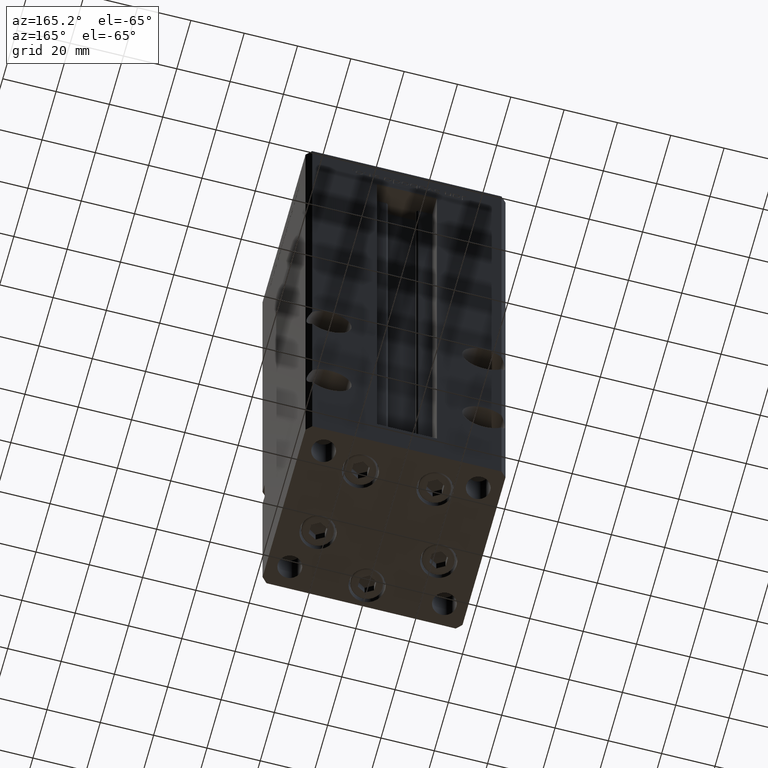
[diagram: clean part render]
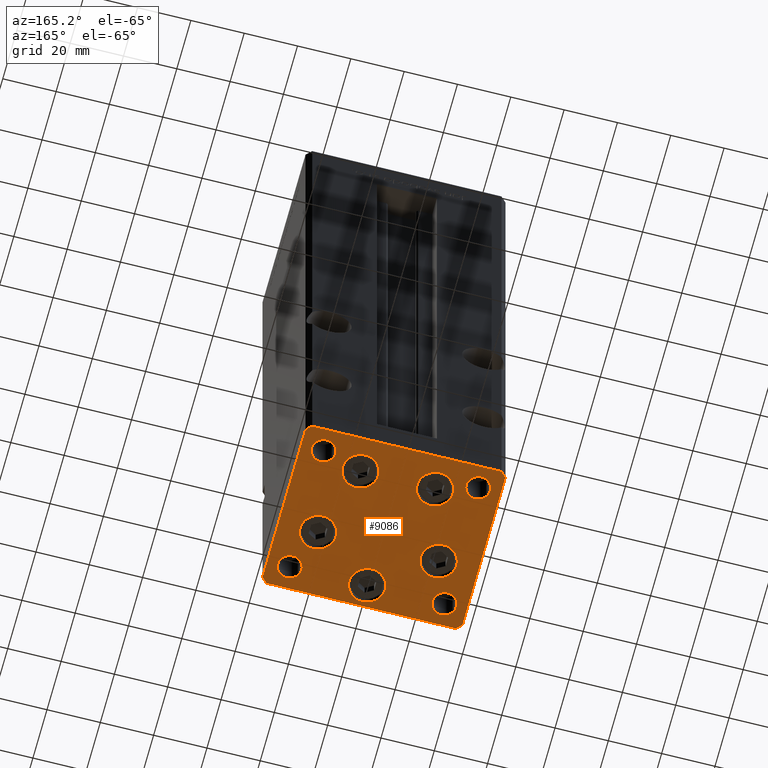
[diagram: same view with one face highlighted and labeled with its STEP entity id]
A machine part, auxiliary view. The second image highlights one B-rep face of the part: STEP entity #9086.
In plain terms, the highlighted planar face has unit normal (0, 0, -1).
Its self-contained STEP definition (entity closure, byte-faithful):
#42 = CARTESIAN_POINT ( 'NONE',  ( 7.241068579628817226, 19.50000000000000000, 0.000000000000000000 ) ) ;
#171 = CARTESIAN_POINT ( 'NONE',  ( 20.74106857963763062, 19.50000000000000000, 0.000000000000000000 ) ) ;
#424 = DIRECTION ( 'NONE',  ( -0.000000000000000000, 0.000000000000000000, 1.000000000000000000 ) ) ;
#947 = DIRECTION ( 'NONE',  ( -0.7071067811865482389, 0.7071067811865469066, 0.000000000000000000 ) ) ;
#1019 = VERTEX_POINT ( 'NONE', #6655 ) ;
#1353 = EDGE_LOOP ( 'NONE', ( #19909, #7232 ) ) ;
#1373 = CARTESIAN_POINT ( 'NONE',  ( -35.49999999999998579, -32.50000000000001421, 0.000000000000000000 ) ) ;
#1527 = CARTESIAN_POINT ( 'NONE',  ( 13.99106857963322348, 19.50000000000000000, 0.000000000000000000 ) ) ;
#1591 = DIRECTION ( 'NONE',  ( 0.000000000000000000, -0.000000000000000000, -1.000000000000000000 ) ) ;
#1741 = DIRECTION ( 'NONE',  ( 0.000000000000000000, -0.000000000000000000, -1.000000000000000000 ) ) ;
#1968 = DIRECTION ( 'NONE',  ( 0.000000000000000000, -0.000000000000000000, -1.000000000000000000 ) ) ;
#2004 = EDGE_CURVE ( 'NONE', #14595, #4115, #37417, .T. ) ;
#2223 = CARTESIAN_POINT ( 'NONE',  ( -29.00000000000001066, -23.99999999999999289, 0.000000000000000000 ) ) ;
#2390 = CARTESIAN_POINT ( 'NONE',  ( 2.939152317953647500E-15, -24.00000000000000000, 0.000000000000000000 ) ) ;
#2727 = DIRECTION ( 'NONE',  ( 1.000000000000000000, 0.000000000000000000, 0.000000000000000000 ) ) ;
#3317 = EDGE_LOOP ( 'NONE', ( #28230, #43460 ) ) ;
#3785 = EDGE_LOOP ( 'NONE', ( #23815, #47729 ) ) ;
#3932 = DIRECTION ( 'NONE',  ( 1.000000000000000000, 0.000000000000000000, 0.000000000000000000 ) ) ;
#4115 = VERTEX_POINT ( 'NONE', #40023 ) ;
#4183 = LINE ( 'NONE', #33988, #18633 ) ;
#4197 = FACE_OUTER_BOUND ( 'NONE', #42256, .T. ) ;
#4302 = DIRECTION ( 'NONE',  ( 1.000000000000000000, 0.000000000000000000, 0.000000000000000000 ) ) ;
#4529 = DIRECTION ( 'NONE',  ( 1.000000000000000000, 0.000000000000000000, 0.000000000000000000 ) ) ;
#5116 = ORIENTED_EDGE ( 'NONE', *, *, #40656, .T. ) ;
#5149 = ORIENTED_EDGE ( 'NONE', *, *, #38844, .T. ) ;
#5161 = CARTESIAN_POINT ( 'NONE',  ( -35.50000000000002842, 32.49999999999999289, 0.000000000000000000 ) ) ;
#5402 = DIRECTION ( 'NONE',  ( 1.000000000000000000, 9.773090005503140331E-17, 0.000000000000000000 ) ) ;
#5745 = CARTESIAN_POINT ( 'NONE',  ( -29.00000000000001066, 24.00000000000000711, 0.000000000000000000 ) ) ;
#5825 = CIRCLE ( 'NONE', #11840, 4.499999999999997335 ) ;
#5899 = LINE ( 'NONE', #9655, #35245 ) ;
#5915 = EDGE_LOOP ( 'NONE', ( #33072, #37031 ) ) ;
#5921 = CARTESIAN_POINT ( 'NONE',  ( 29.00000000000001066, 24.00000000000000711, 0.000000000000000000 ) ) ;
#6292 = CARTESIAN_POINT ( 'NONE',  ( -22.62741699796951877, -8.000000000000005329, 0.000000000000000000 ) ) ;
#6356 = EDGE_CURVE ( 'NONE', #49099, #11377, #7181, .T. ) ;
#6591 = CIRCLE ( 'NONE', #37472, 6.750000000004410694 ) ;
#6634 = VECTOR ( 'NONE', #44261, 1000.000000000000000 ) ;
#6655 = CARTESIAN_POINT ( 'NONE',  ( 29.37741699797392769, -8.000000000000000000, 0.000000000000000000 ) ) ;
#6708 = CARTESIAN_POINT ( 'NONE',  ( -24.50000000000001066, -23.99999999999999289, 0.000000000000000000 ) ) ;
#6791 = LINE ( 'NONE', #14845, #36937 ) ;
#7181 = CIRCLE ( 'NONE', #13150, 4.499999999999997335 ) ;
#7232 = ORIENTED_EDGE ( 'NONE', *, *, #52338, .T. ) ;
#7594 = EDGE_CURVE ( 'NONE', #19109, #27839, #26089, .T. ) ;
#8069 = EDGE_LOOP ( 'NONE', ( #9650, #5116 ) ) ;
#8263 = VECTOR ( 'NONE', #23527, 1000.000000000000000 ) ;
#8360 = DIRECTION ( 'NONE',  ( 0.000000000000000000, -0.000000000000000000, -1.000000000000000000 ) ) ;
#9086 = ADVANCED_FACE ( 'NONE', ( #23819, #41277, #48571, #32420, #44789, #24596, #41010, #20051, #4197, #16278 ), #20586, .T. ) ;
#9650 = ORIENTED_EDGE ( 'NONE', *, *, #2004, .T. ) ;
#9655 = CARTESIAN_POINT ( 'NONE',  ( -35.50000000000002842, 32.49999999999999289, 0.000000000000000000 ) ) ;
#9727 = EDGE_LOOP ( 'NONE', ( #29368, #33975 ) ) ;
#10029 = CIRCLE ( 'NONE', #14324, 6.750000000004410694 ) ;
#10341 = AXIS2_PLACEMENT_3D ( 'NONE', #35830, #23724, #10818 ) ;
#10354 = CARTESIAN_POINT ( 'NONE',  ( -24.50000000000001066, 24.00000000000000711, 0.000000000000000000 ) ) ;
#10502 = EDGE_CURVE ( 'NONE', #26970, #17338, #50047, .T. ) ;
#10818 = DIRECTION ( 'NONE',  ( 1.000000000000000000, 0.000000000000000000, 0.000000000000000000 ) ) ;
#10862 = DIRECTION ( 'NONE',  ( 0.000000000000000000, -0.000000000000000000, -1.000000000000000000 ) ) ;
#10956 = CIRCLE ( 'NONE', #15255, 6.750000000004412470 ) ;
#11167 = VERTEX_POINT ( 'NONE', #10354 ) ;
#11377 = VERTEX_POINT ( 'NONE', #17491 ) ;
#11413 = EDGE_CURVE ( 'NONE', #17338, #33655, #25821, .T. ) ;
#11738 = DIRECTION ( 'NONE',  ( -0.000000000000000000, 0.000000000000000000, 1.000000000000000000 ) ) ;
#11840 = AXIS2_PLACEMENT_3D ( 'NONE', #5921, #43267, #18265 ) ;
#11873 = CARTESIAN_POINT ( 'NONE',  ( 13.99106857963322348, 19.50000000000000000, 0.000000000000000000 ) ) ;
#12613 = CARTESIAN_POINT ( 'NONE',  ( 33.50000000000000711, 24.00000000000000711, 0.000000000000000000 ) ) ;
#12655 = DIRECTION ( 'NONE',  ( 1.000000000000000000, 0.000000000000000000, 0.000000000000000000 ) ) ;
#12865 = CIRCLE ( 'NONE', #29183, 6.750000000004408918 ) ;
#13150 = AXIS2_PLACEMENT_3D ( 'NONE', #39636, #10862, #24028 ) ;
#13603 = DIRECTION ( 'NONE',  ( 0.000000000000000000, -0.000000000000000000, -1.000000000000000000 ) ) ;
#13874 = DIRECTION ( 'NONE',  ( 1.000000000000000000, 0.000000000000000000, 0.000000000000000000 ) ) ;
#14241 = AXIS2_PLACEMENT_3D ( 'NONE', #6292, #1741, #38558 ) ;
#14324 = AXIS2_PLACEMENT_3D ( 'NONE', #47429, #22427, #34533 ) ;
#14595 = VERTEX_POINT ( 'NONE', #14835 ) ;
#14636 = DIRECTION ( 'NONE',  ( 1.000000000000000000, 0.000000000000000000, 0.000000000000000000 ) ) ;
#14708 = CARTESIAN_POINT ( 'NONE',  ( -33.50000000000001421, -23.99999999999999289, 0.000000000000000000 ) ) ;
#14835 = CARTESIAN_POINT ( 'NONE',  ( -29.37741699797393125, -8.000000000000005329, 0.000000000000000000 ) ) ;
#14845 = CARTESIAN_POINT ( 'NONE',  ( 37.50000000000001421, -30.50000000000000711, 0.000000000000000000 ) ) ;
#15047 = DIRECTION ( 'NONE',  ( -1.000000000000000000, -1.954618001100629052E-16, 0.000000000000000000 ) ) ;
#15255 = AXIS2_PLACEMENT_3D ( 'NONE', #20663, #41611, #4529 ) ;
#15488 = CIRCLE ( 'NONE', #16323, 6.750000000004407141 ) ;
#15573 = ORIENTED_EDGE ( 'NONE', *, *, #23295, .T. ) ;
#15596 = ORIENTED_EDGE ( 'NONE', *, *, #44849, .T. ) ;
#15996 = CARTESIAN_POINT ( 'NONE',  ( 37.49999999999992184, 30.50000000000001066, 0.000000000000000000 ) ) ;
#16113 = CARTESIAN_POINT ( 'NONE',  ( 35.49999999999992184, 32.50000000000000711, 0.000000000000000000 ) ) ;
#16176 = AXIS2_PLACEMENT_3D ( 'NONE', #17485, #29324, #28787 ) ;
#16189 = EDGE_LOOP ( 'NONE', ( #16643, #27377 ) ) ;
#16278 = FACE_BOUND ( 'NONE', #9727, .T. ) ;
#16323 = AXIS2_PLACEMENT_3D ( 'NONE', #1527, #34319, #13874 ) ;
#16527 = VERTEX_POINT ( 'NONE', #52586 ) ;
#16612 = VERTEX_POINT ( 'NONE', #29937 ) ;
#16643 = ORIENTED_EDGE ( 'NONE', *, *, #25708, .F. ) ;
#16875 = CARTESIAN_POINT ( 'NONE',  ( -7.241068579628817226, 19.49999999999999645, 0.000000000000000000 ) ) ;
#16980 = CIRCLE ( 'NONE', #49626, 4.500000000000000888 ) ;
#17338 = VERTEX_POINT ( 'NONE', #23352 ) ;
#17485 = CARTESIAN_POINT ( 'NONE',  ( 29.00000000000001066, 24.00000000000000711, 0.000000000000000000 ) ) ;
#17491 = CARTESIAN_POINT ( 'NONE',  ( 24.50000000000001421, -23.99999999999999289, 0.000000000000000000 ) ) ;
#17539 = VERTEX_POINT ( 'NONE', #16875 ) ;
#17629 = VECTOR ( 'NONE', #5402, 1000.000000000000000 ) ;
#17769 = EDGE_CURVE ( 'NONE', #20833, #26970, #36452, .T. ) ;
#17861 = CIRCLE ( 'NONE', #27346, 6.750000000004408918 ) ;
#18265 = DIRECTION ( 'NONE',  ( 1.000000000000000000, 0.000000000000000000, 0.000000000000000000 ) ) ;
#18569 = DIRECTION ( 'NONE',  ( 0.000000000000000000, -0.000000000000000000, -1.000000000000000000 ) ) ;
#18633 = VECTOR ( 'NONE', #947, 999.9999999999998863 ) ;
#18769 = DIRECTION ( 'NONE',  ( 1.000000000000000000, 0.000000000000000000, 0.000000000000000000 ) ) ;
#19038 = EDGE_CURVE ( 'NONE', #40472, #33330, #41732, .T. ) ;
#19109 = VERTEX_POINT ( 'NONE', #42 ) ;
#19561 = CIRCLE ( 'NONE', #24687, 4.500000000000000888 ) ;
#19909 = ORIENTED_EDGE ( 'NONE', *, *, #7594, .T. ) ;
#20029 = CARTESIAN_POINT ( 'NONE',  ( 35.50000000000000711, -32.50000000000000711, 0.000000000000000000 ) ) ;
#20051 = FACE_BOUND ( 'NONE', #3785, .T. ) ;
#20357 = AXIS2_PLACEMENT_3D ( 'NONE', #46701, #23025, #43194 ) ;
#20442 = EDGE_CURVE ( 'NONE', #16612, #24416, #6591, .T. ) ;
#20586 = PLANE ( 'NONE',  #31266 ) ;
#20663 = CARTESIAN_POINT ( 'NONE',  ( -22.62741699796951877, -8.000000000000005329, 0.000000000000000000 ) ) ;
#20694 = CARTESIAN_POINT ( 'NONE',  ( 29.00000000000001066, -23.99999999999999289, 0.000000000000000000 ) ) ;
#20799 = EDGE_CURVE ( 'NONE', #33655, #23366, #35632, .T. ) ;
#20833 = VERTEX_POINT ( 'NONE', #40463 ) ;
#21237 = AXIS2_PLACEMENT_3D ( 'NONE', #47875, #18569, #2727 ) ;
#21653 = EDGE_CURVE ( 'NONE', #52488, #44384, #4183, .T. ) ;
#21863 = DIRECTION ( 'NONE',  ( -0.000000000000000000, 0.000000000000000000, 1.000000000000000000 ) ) ;
#21987 = CARTESIAN_POINT ( 'NONE',  ( -37.49999999999998579, -30.50000000000001421, 0.000000000000000000 ) ) ;
#22116 = CIRCLE ( 'NONE', #21237, 6.750000000004410694 ) ;
#22427 = DIRECTION ( 'NONE',  ( 0.000000000000000000, -0.000000000000000000, -1.000000000000000000 ) ) ;
#23025 = DIRECTION ( 'NONE',  ( 0.000000000000000000, -0.000000000000000000, -1.000000000000000000 ) ) ;
#23128 = LINE ( 'NONE', #16113, #41928 ) ;
#23295 = EDGE_CURVE ( 'NONE', #51253, #17539, #23818, .T. ) ;
#23352 = CARTESIAN_POINT ( 'NONE',  ( -35.49999999999998579, -32.50000000000001421, 0.000000000000000000 ) ) ;
#23366 = VERTEX_POINT ( 'NONE', #28122 ) ;
#23527 = DIRECTION ( 'NONE',  ( 0.7071067811865487940, 0.7071067811865463515, 0.000000000000000000 ) ) ;
#23724 = DIRECTION ( 'NONE',  ( 0.000000000000000000, -0.000000000000000000, -1.000000000000000000 ) ) ;
#23815 = ORIENTED_EDGE ( 'NONE', *, *, #40832, .F. ) ;
#23818 = CIRCLE ( 'NONE', #20357, 6.750000000004410694 ) ;
#23819 = FACE_BOUND ( 'NONE', #36895, .T. ) ;
#24028 = DIRECTION ( 'NONE',  ( 1.000000000000000000, 0.000000000000000000, 0.000000000000000000 ) ) ;
#24416 = VERTEX_POINT ( 'NONE', #30243 ) ;
#24596 = FACE_BOUND ( 'NONE', #16189, .T. ) ;
#24687 = AXIS2_PLACEMENT_3D ( 'NONE', #48587, #11738, #44537 ) ;
#24797 = ORIENTED_EDGE ( 'NONE', *, *, #20799, .T. ) ;
#24917 = AXIS2_PLACEMENT_3D ( 'NONE', #20694, #37088, #4302 ) ;
#25230 = EDGE_CURVE ( 'NONE', #1019, #31080, #17861, .T. ) ;
#25708 = EDGE_CURVE ( 'NONE', #36040, #16527, #30761, .T. ) ;
#25821 = LINE ( 'NONE', #1373, #17629 ) ;
#26089 = CIRCLE ( 'NONE', #26936, 6.750000000004407141 ) ;
#26486 = DIRECTION ( 'NONE',  ( 0.000000000000000000, -0.000000000000000000, -1.000000000000000000 ) ) ;
#26687 = DIRECTION ( 'NONE',  ( 1.000000000000000000, 0.000000000000000000, 0.000000000000000000 ) ) ;
#26936 = AXIS2_PLACEMENT_3D ( 'NONE', #11873, #8360, #12655 ) ;
#26970 = VERTEX_POINT ( 'NONE', #21987 ) ;
#27022 = CARTESIAN_POINT ( 'NONE',  ( 35.50000000000000711, -32.50000000000000711, 0.000000000000000000 ) ) ;
#27346 = AXIS2_PLACEMENT_3D ( 'NONE', #38848, #26486, #14636 ) ;
#27377 = ORIENTED_EDGE ( 'NONE', *, *, #40300, .F. ) ;
#27826 = CARTESIAN_POINT ( 'NONE',  ( 35.49999999999992184, 32.50000000000000711, 0.000000000000000000 ) ) ;
#27839 = VERTEX_POINT ( 'NONE', #171 ) ;
#28122 = CARTESIAN_POINT ( 'NONE',  ( 37.50000000000001421, -30.50000000000000711, 0.000000000000000000 ) ) ;
#28230 = ORIENTED_EDGE ( 'NONE', *, *, #51497, .T. ) ;
#28787 = DIRECTION ( 'NONE',  ( 1.000000000000000000, 0.000000000000000000, 0.000000000000000000 ) ) ;
#29183 = AXIS2_PLACEMENT_3D ( 'NONE', #38327, #13603, #38869 ) ;
#29324 = DIRECTION ( 'NONE',  ( -0.000000000000000000, 0.000000000000000000, 1.000000000000000000 ) ) ;
#29368 = ORIENTED_EDGE ( 'NONE', *, *, #19038, .T. ) ;
#29937 = CARTESIAN_POINT ( 'NONE',  ( -6.750000000004408029, -24.00000000000000000, 0.000000000000000000 ) ) ;
#30013 = CARTESIAN_POINT ( 'NONE',  ( 15.87741699796511163, -8.000000000000000000, 0.000000000000000000 ) ) ;
#30243 = CARTESIAN_POINT ( 'NONE',  ( 6.750000000004413359, -24.00000000000000000, 0.000000000000000000 ) ) ;
#30289 = EDGE_CURVE ( 'NONE', #23366, #52488, #6791, .T. ) ;
#30641 = EDGE_CURVE ( 'NONE', #11377, #49099, #45498, .T. ) ;
#30761 = CIRCLE ( 'NONE', #16176, 4.499999999999997335 ) ;
#30826 = VERTEX_POINT ( 'NONE', #47284 ) ;
#30960 = ORIENTED_EDGE ( 'NONE', *, *, #41861, .T. ) ;
#31080 = VERTEX_POINT ( 'NONE', #30013 ) ;
#31169 = CARTESIAN_POINT ( 'NONE',  ( -37.49999999999998579, -30.50000000000001421, 0.000000000000000000 ) ) ;
#31222 = ORIENTED_EDGE ( 'NONE', *, *, #17769, .T. ) ;
#31266 = AXIS2_PLACEMENT_3D ( 'NONE', #40744, #424, #3932 ) ;
#32420 = FACE_BOUND ( 'NONE', #34716, .T. ) ;
#33072 = ORIENTED_EDGE ( 'NONE', *, *, #6356, .T. ) ;
#33330 = VERTEX_POINT ( 'NONE', #14708 ) ;
#33655 = VERTEX_POINT ( 'NONE', #27022 ) ;
#33975 = ORIENTED_EDGE ( 'NONE', *, *, #51842, .T. ) ;
#33988 = CARTESIAN_POINT ( 'NONE',  ( 37.49999999999992184, 30.50000000000001066, 0.000000000000000000 ) ) ;
#34319 = DIRECTION ( 'NONE',  ( 0.000000000000000000, -0.000000000000000000, -1.000000000000000000 ) ) ;
#34533 = DIRECTION ( 'NONE',  ( 1.000000000000000000, 0.000000000000000000, 0.000000000000000000 ) ) ;
#34716 = EDGE_LOOP ( 'NONE', ( #39536, #5149 ) ) ;
#35245 = VECTOR ( 'NONE', #51075, 1000.000000000000000 ) ;
#35632 = LINE ( 'NONE', #20029, #8263 ) ;
#35830 = CARTESIAN_POINT ( 'NONE',  ( -29.00000000000001066, -23.99999999999999289, 0.000000000000000000 ) ) ;
#36040 = VERTEX_POINT ( 'NONE', #12613 ) ;
#36172 = ORIENTED_EDGE ( 'NONE', *, *, #10502, .T. ) ;
#36452 = LINE ( 'NONE', #52352, #6634 ) ;
#36895 = EDGE_LOOP ( 'NONE', ( #15573, #15596 ) ) ;
#36937 = VECTOR ( 'NONE', #47658, 1000.000000000000000 ) ;
#37031 = ORIENTED_EDGE ( 'NONE', *, *, #30641, .T. ) ;
#37088 = DIRECTION ( 'NONE',  ( 0.000000000000000000, -0.000000000000000000, -1.000000000000000000 ) ) ;
#37417 = CIRCLE ( 'NONE', #14241, 6.750000000004412470 ) ;
#37472 = AXIS2_PLACEMENT_3D ( 'NONE', #2390, #1591, #18769 ) ;
#38327 = CARTESIAN_POINT ( 'NONE',  ( 22.62741699796951877, -8.000000000000000000, 0.000000000000000000 ) ) ;
#38558 = DIRECTION ( 'NONE',  ( 1.000000000000000000, 0.000000000000000000, 0.000000000000000000 ) ) ;
#38844 = EDGE_CURVE ( 'NONE', #24416, #16612, #10029, .T. ) ;
#38848 = CARTESIAN_POINT ( 'NONE',  ( 22.62741699796951877, -8.000000000000000000, 0.000000000000000000 ) ) ;
#38869 = DIRECTION ( 'NONE',  ( 1.000000000000000000, 0.000000000000000000, 0.000000000000000000 ) ) ;
#39536 = ORIENTED_EDGE ( 'NONE', *, *, #20442, .T. ) ;
#39636 = CARTESIAN_POINT ( 'NONE',  ( 29.00000000000001066, -23.99999999999999289, 0.000000000000000000 ) ) ;
#40023 = CARTESIAN_POINT ( 'NONE',  ( -15.87741699796510808, -8.000000000000005329, 0.000000000000000000 ) ) ;
#40145 = ORIENTED_EDGE ( 'NONE', *, *, #21653, .T. ) ;
#40300 = EDGE_CURVE ( 'NONE', #16527, #36040, #5825, .T. ) ;
#40463 = CARTESIAN_POINT ( 'NONE',  ( -37.50000000000001421, 30.49999999999998579, 0.000000000000000000 ) ) ;
#40472 = VERTEX_POINT ( 'NONE', #6708 ) ;
#40656 = EDGE_CURVE ( 'NONE', #4115, #14595, #10956, .T. ) ;
#40744 = CARTESIAN_POINT ( 'NONE',  ( 0.000000000000000000, 0.000000000000000000, 0.000000000000000000 ) ) ;
#40832 = EDGE_CURVE ( 'NONE', #11167, #30826, #19561, .T. ) ;
#41010 = FACE_BOUND ( 'NONE', #5915, .T. ) ;
#41277 = FACE_BOUND ( 'NONE', #1353, .T. ) ;
#41611 = DIRECTION ( 'NONE',  ( 0.000000000000000000, -0.000000000000000000, -1.000000000000000000 ) ) ;
#41732 = CIRCLE ( 'NONE', #46033, 4.500000000000000888 ) ;
#41861 = EDGE_CURVE ( 'NONE', #44384, #43689, #23128, .T. ) ;
#41928 = VECTOR ( 'NONE', #15047, 1000.000000000000000 ) ;
#42256 = EDGE_LOOP ( 'NONE', ( #36172, #51157, #24797, #43370, #40145, #30960, #44118, #31222 ) ) ;
#43194 = DIRECTION ( 'NONE',  ( 1.000000000000000000, 0.000000000000000000, 0.000000000000000000 ) ) ;
#43267 = DIRECTION ( 'NONE',  ( -0.000000000000000000, 0.000000000000000000, 1.000000000000000000 ) ) ;
#43370 = ORIENTED_EDGE ( 'NONE', *, *, #30289, .T. ) ;
#43460 = ORIENTED_EDGE ( 'NONE', *, *, #25230, .T. ) ;
#43689 = VERTEX_POINT ( 'NONE', #5161 ) ;
#44118 = ORIENTED_EDGE ( 'NONE', *, *, #52869, .T. ) ;
#44261 = DIRECTION ( 'NONE',  ( 4.550094363217855288E-16, -1.000000000000000000, 0.000000000000000000 ) ) ;
#44384 = VERTEX_POINT ( 'NONE', #27826 ) ;
#44497 = EDGE_CURVE ( 'NONE', #30826, #11167, #16980, .T. ) ;
#44537 = DIRECTION ( 'NONE',  ( 1.000000000000000000, 0.000000000000000000, 0.000000000000000000 ) ) ;
#44789 = FACE_BOUND ( 'NONE', #8069, .T. ) ;
#44849 = EDGE_CURVE ( 'NONE', #17539, #51253, #22116, .T. ) ;
#45498 = CIRCLE ( 'NONE', #24917, 4.499999999999997335 ) ;
#45702 = CARTESIAN_POINT ( 'NONE',  ( 33.50000000000000711, -23.99999999999999289, 0.000000000000000000 ) ) ;
#46033 = AXIS2_PLACEMENT_3D ( 'NONE', #2223, #1968, #26687 ) ;
#46701 = CARTESIAN_POINT ( 'NONE',  ( -13.99106857963322703, 19.49999999999999645, 0.000000000000000000 ) ) ;
#46786 = DIRECTION ( 'NONE',  ( 0.7071067811865474617, -0.7071067811865474617, 0.000000000000000000 ) ) ;
#47284 = CARTESIAN_POINT ( 'NONE',  ( -33.50000000000001421, 24.00000000000000711, 0.000000000000000000 ) ) ;
#47429 = CARTESIAN_POINT ( 'NONE',  ( 2.939152317953647500E-15, -24.00000000000000000, 0.000000000000000000 ) ) ;
#47658 = DIRECTION ( 'NONE',  ( -1.478780668045802821E-15, 1.000000000000000000, 0.000000000000000000 ) ) ;
#47729 = ORIENTED_EDGE ( 'NONE', *, *, #44497, .F. ) ;
#47875 = CARTESIAN_POINT ( 'NONE',  ( -13.99106857963322703, 19.49999999999999645, 0.000000000000000000 ) ) ;
#48120 = CIRCLE ( 'NONE', #10341, 4.500000000000000888 ) ;
#48571 = FACE_BOUND ( 'NONE', #3317, .T. ) ;
#48587 = CARTESIAN_POINT ( 'NONE',  ( -29.00000000000001066, 24.00000000000000711, 0.000000000000000000 ) ) ;
#48606 = CARTESIAN_POINT ( 'NONE',  ( -20.74106857963763773, 19.49999999999999645, 0.000000000000000000 ) ) ;
#49099 = VERTEX_POINT ( 'NONE', #45702 ) ;
#49626 = AXIS2_PLACEMENT_3D ( 'NONE', #5745, #21863, #50138 ) ;
#50047 = LINE ( 'NONE', #31169, #50256 ) ;
#50138 = DIRECTION ( 'NONE',  ( 1.000000000000000000, 0.000000000000000000, 0.000000000000000000 ) ) ;
#50256 = VECTOR ( 'NONE', #46786, 1000.000000000000114 ) ;
#51075 = DIRECTION ( 'NONE',  ( -0.7071067811865426878, -0.7071067811865524577, 0.000000000000000000 ) ) ;
#51157 = ORIENTED_EDGE ( 'NONE', *, *, #11413, .T. ) ;
#51253 = VERTEX_POINT ( 'NONE', #48606 ) ;
#51497 = EDGE_CURVE ( 'NONE', #31080, #1019, #12865, .T. ) ;
#51842 = EDGE_CURVE ( 'NONE', #33330, #40472, #48120, .T. ) ;
#52338 = EDGE_CURVE ( 'NONE', #27839, #19109, #15488, .T. ) ;
#52352 = CARTESIAN_POINT ( 'NONE',  ( -37.50000000000001421, 30.49999999999998579, 0.000000000000000000 ) ) ;
#52488 = VERTEX_POINT ( 'NONE', #15996 ) ;
#52586 = CARTESIAN_POINT ( 'NONE',  ( 24.50000000000001421, 24.00000000000000711, 0.000000000000000000 ) ) ;
#52869 = EDGE_CURVE ( 'NONE', #43689, #20833, #5899, .T. ) ;